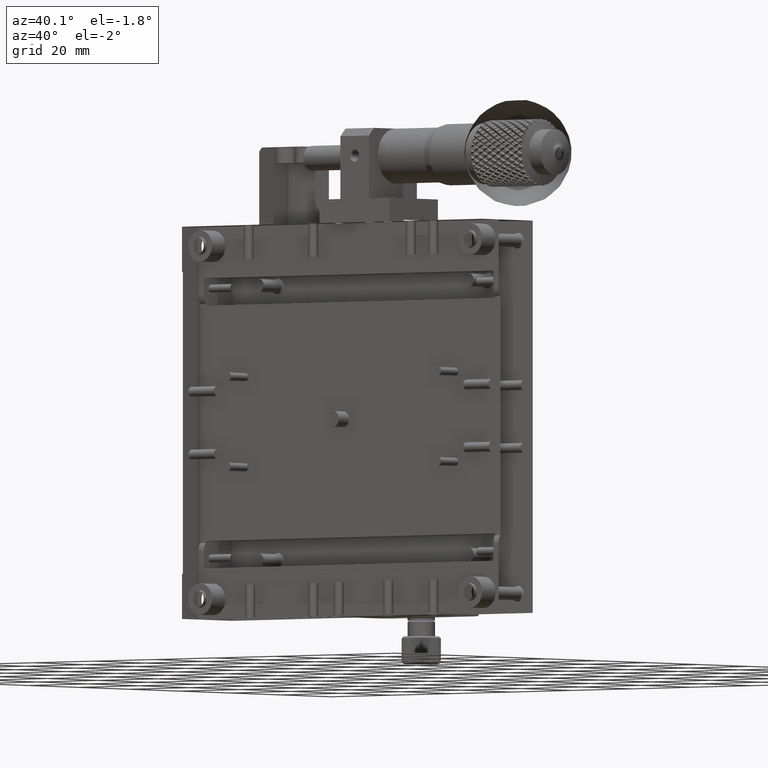
[diagram: clean part render]
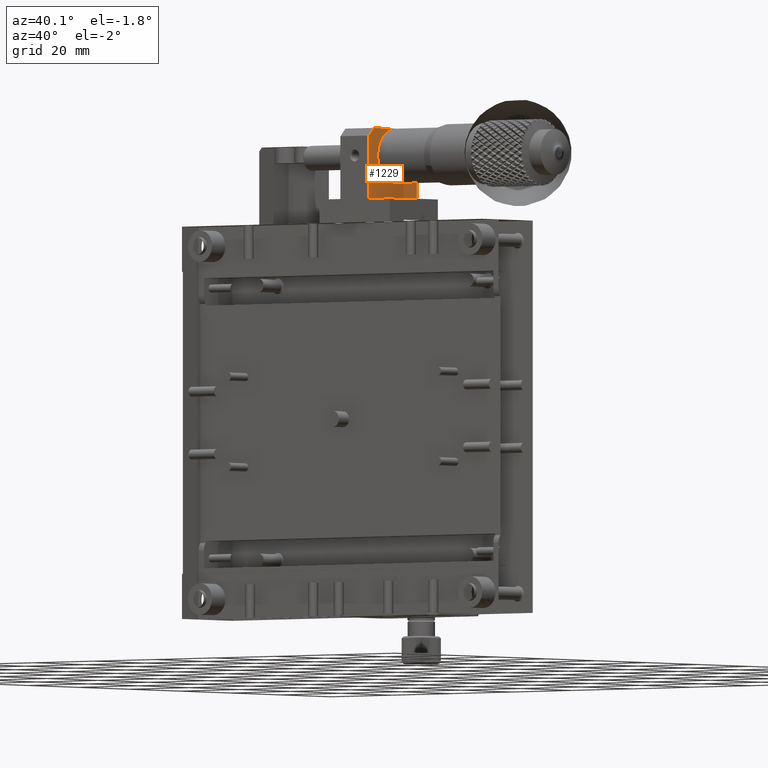
[diagram: same view with one face highlighted and labeled with its STEP entity id]
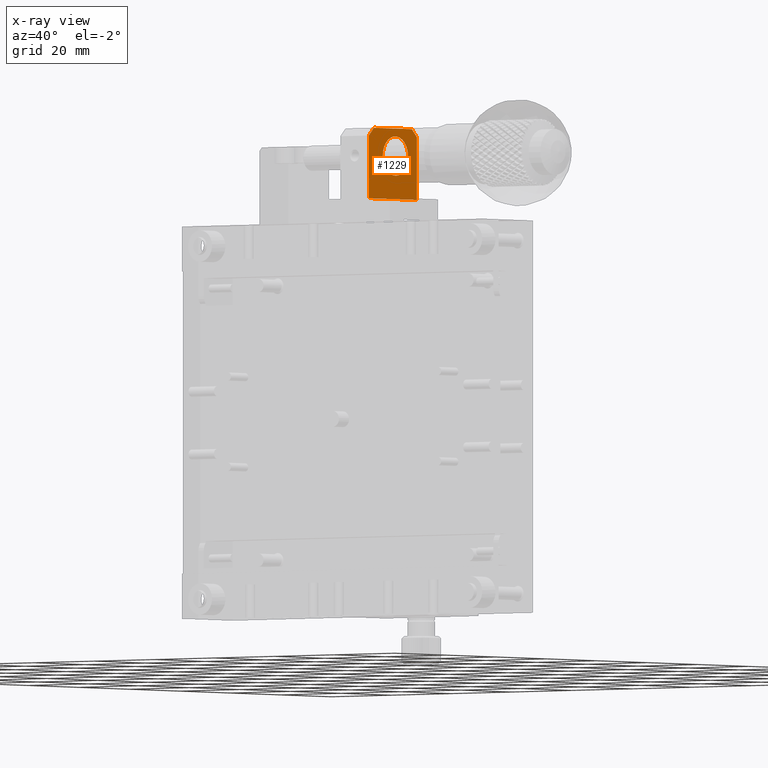
[diagram: x-ray of the same camera — body ghosted, the highlighted face saturated]
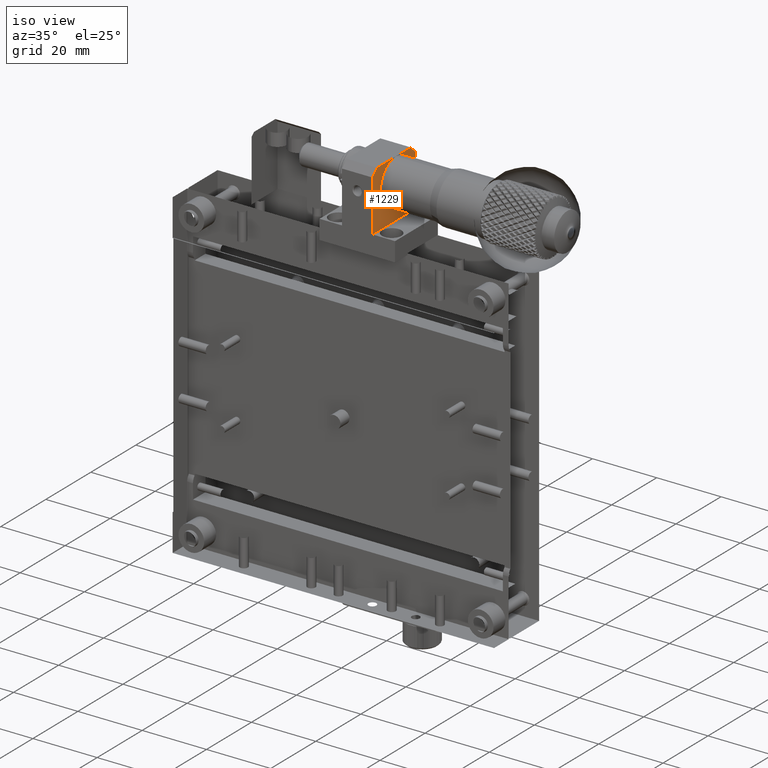
[diagram: same view with one face highlighted and labeled with its STEP entity id]
A machine part, auxiliary view. The second image highlights one B-rep face of the part: STEP entity #1229.
The next image is the same camera in x-ray: the body ghosted, the highlighted face saturated — about 0% of this face is hidden behind the body in this view.
A second angle (iso view) of the same face is appended — the face is thin or edge-on in the first view.
In plain terms, the highlighted planar face has unit normal (1, -0, 0).
Its self-contained STEP definition (entity closure, byte-faithful):
#509 = CARTESIAN_POINT ( 'NONE',  ( 25.80109935357900142, 4.509050023397064066, 56.00001249999999686 ) ) ;
#1229 = ADVANCED_FACE ( 'NONE', ( #62478, #46790 ), #68900, .T. ) ;
#1922 = CARTESIAN_POINT ( 'NONE',  ( 25.80109935357900852, -0.5773155411042533158, 63.34255286475351454 ) ) ;
#2815 = DIRECTION ( 'NONE',  ( 7.583683210611628379E-17, 0.000000000000000000, -1.000000000000000000 ) ) ;
#2988 = VECTOR ( 'NONE', #88964, 1000.000000000000000 ) ;
#4219 = CARTESIAN_POINT ( 'NONE',  ( 25.80109935357899431, -14.49094997660293416, 72.00001250000001107 ) ) ;
#4318 = CARTESIAN_POINT ( 'NONE',  ( 25.80109935357900142, -5.309037859090188327, 62.17184065414365080 ) ) ;
#4410 = VECTOR ( 'NONE', #25728, 1000.000000000000000 ) ;
#4798 = CARTESIAN_POINT ( 'NONE',  ( 25.80109935357900142, -8.268306355688359588, 64.40523072326317333 ) ) ;
#5283 = CARTESIAN_POINT ( 'NONE',  ( 25.80109935357900852, -5.811805308121201996, 62.34330666502793150 ) ) ;
#5762 = CARTESIAN_POINT ( 'NONE',  ( 25.80109935357900497, -8.395585966584853566, 64.62312786829446054 ) ) ;
#6251 = CARTESIAN_POINT ( 'NONE',  ( 25.80109935357900497, -5.757376340415842009, 62.32237940801928744 ) ) ;
#6746 = CARTESIAN_POINT ( 'NONE',  ( 25.80109935357900142, -1.542861891218868520, 71.36056215126301083 ) ) ;
#7373 = LINE ( 'NONE', #66596, #59063 ) ;
#7704 = CARTESIAN_POINT ( 'NONE',  ( 25.80109935357900142, 0.7176316793226528157, 68.68988353900434163 ) ) ;
#8715 = EDGE_LOOP ( 'NONE', ( #63720, #27710, #43493, #87789, #94350, #21718 ) ) ;
#9261 = LINE ( 'NONE', #509, #90038 ) ;
#10746 = DIRECTION ( 'NONE',  ( -0.000000000000000000, 5.112575245972829219E-17, 1.000000000000000000 ) ) ;
#11654 = CARTESIAN_POINT ( 'NONE',  ( 25.80109935357899786, -0.2116171298020833869, 63.70833005269478377 ) ) ;
#11729 = CARTESIAN_POINT ( 'NONE',  ( 25.80109935357900142, -8.990949976602935934, 67.00001249999999686 ) ) ;
#12622 = CARTESIAN_POINT ( 'NONE',  ( 25.80109935357900852, -8.849174500725679238, 65.81283953074202486 ) ) ;
#13116 = CARTESIAN_POINT ( 'NONE',  ( 25.80109935357900852, -7.404584412109193714, 70.65747213524377912 ) ) ;
#13518 = EDGE_CURVE ( 'NONE', #91297, #55964, #69747, .T. ) ;
#13609 = CARTESIAN_POINT ( 'NONE',  ( 25.80109935357899786, -6.585731753354262530, 71.27736887907428809 ) ) ;
#14083 = CARTESIAN_POINT ( 'NONE',  ( 25.80109935357900142, -7.978263357283520207, 63.98186511422258604 ) ) ;
#14097 = CARTESIAN_POINT ( 'NONE',  ( 25.80109935357900142, -2.672862094108394704, 71.82818434585911405 ) ) ;
#14578 = CARTESIAN_POINT ( 'NONE',  ( 25.80109935357900142, 0.7958099593790690651, 68.46059937168200804 ) ) ;
#15018 = EDGE_CURVE ( 'NONE', #82716, #91297, #36627, .T. ) ;
#15058 = CARTESIAN_POINT ( 'NONE',  ( 25.80109935357901207, -0.6992675292681054255, 70.77934534675685541 ) ) ;
#16014 = CARTESIAN_POINT ( 'NONE',  ( 25.80109935357900142, 4.509050023397064066, 56.00001249999999686 ) ) ;
#18029 = CARTESIAN_POINT ( 'NONE',  ( 25.80109935357899431, 0.6725046891341373012, 65.19651988056965308 ) ) ;
#18750 = CARTESIAN_POINT ( 'NONE',  ( 25.80109935357899431, -12.49094997660293593, 74.00001249999999686 ) ) ;
#19006 = CARTESIAN_POINT ( 'NONE',  ( 25.80109935357899786, 0.6657558583696888688, 65.17915716848267493 ) ) ;
#20443 = CARTESIAN_POINT ( 'NONE',  ( 25.80109935357899431, -8.575263858586007260, 65.00353017345489093 ) ) ;
#20461 = CARTESIAN_POINT ( 'NONE',  ( 25.80109935357899786, -6.797632238615835654, 71.13880064460271058 ) ) ;
#20944 = CARTESIAN_POINT ( 'NONE',  ( 25.80109935357900142, 1.009050023397066509, 67.00001249999999686 ) ) ;
#21411 = CARTESIAN_POINT ( 'NONE',  ( 25.80109935357899431, 0.9102117833111328382, 67.98946015923532116 ) ) ;
#21718 = ORIENTED_EDGE ( 'NONE', *, *, #68596, .F. ) ;
#21892 = CARTESIAN_POINT ( 'NONE',  ( 25.80109935357899431, -5.240601782589346946, 71.88292552377909317 ) ) ;
#22379 = CARTESIAN_POINT ( 'NONE',  ( 25.80109935357900142, -6.103127117899057374, 71.53338627806094507 ) ) ;
#24881 = CARTESIAN_POINT ( 'NONE',  ( 25.80109935357899786, -3.355486802448401029, 62.00007990400856528 ) ) ;
#25074 = EDGE_CURVE ( 'NONE', #34329, #96734, #91938, .T. ) ;
#25208 = VECTOR ( 'NONE', #10746, 1000.000000000000000 ) ;
#25395 = CARTESIAN_POINT ( 'NONE',  ( 25.80109935357900497, -8.351499627860963670, 69.44810058539700037 ) ) ;
#25728 = DIRECTION ( 'NONE',  ( 0.000000000000000000, -0.7071067811865439090, 0.7071067811865512365 ) ) ;
#26223 = CARTESIAN_POINT ( 'NONE',  ( 25.80109935357900142, 4.509050023397064066, 72.00001249999998265 ) ) ;
#26354 = CARTESIAN_POINT ( 'NONE',  ( 25.80109935357900142, -2.013750119168898234, 62.40720860070570808 ) ) ;
#26371 = CARTESIAN_POINT ( 'NONE',  ( 25.80109935357900142, -8.990949976602935934, 67.00001249999999686 ) ) ;
#26824 = CARTESIAN_POINT ( 'NONE',  ( 25.80109935357900497, -5.571432285039209731, 62.25505263444960491 ) ) ;
#26843 = CARTESIAN_POINT ( 'NONE',  ( 25.80109935357899786, -8.647655811576072438, 68.82086783151625298 ) ) ;
#27319 = CARTESIAN_POINT ( 'NONE',  ( 25.80109935357900852, -8.577776844627193142, 68.99743177815427941 ) ) ;
#27710 = ORIENTED_EDGE ( 'NONE', *, *, #13518, .T. ) ;
#27787 = CARTESIAN_POINT ( 'NONE',  ( 25.80109935357900852, -6.218025454877249558, 62.51776710357908939 ) ) ;
#28293 = CARTESIAN_POINT ( 'NONE',  ( 25.80109935357899786, -2.187467835256617477, 71.66347131266363135 ) ) ;
#28772 = CARTESIAN_POINT ( 'NONE',  ( 25.80109935357899786, -5.909740239815397089, 71.61722814278790850 ) ) ;
#29255 = CARTESIAN_POINT ( 'NONE',  ( 25.80109935357900497, 0.9812256374246903778, 67.60928649679392777 ) ) ;
#29728 = CARTESIAN_POINT ( 'NONE',  ( 25.80109935357901563, 0.6263832560163357099, 68.91886522841652152 ) ) ;
#31735 = CARTESIAN_POINT ( 'NONE',  ( 25.80109935357900497, -2.111224373283350886, 62.36675754120589232 ) ) ;
#32682 = CARTESIAN_POINT ( 'NONE',  ( 25.80109935357900142, 0.7075876832321752463, 65.28919924660625895 ) ) ;
#33170 = CARTESIAN_POINT ( 'NONE',  ( 25.80109935357900497, -0.9728025908325992344, 63.01269911931562007 ) ) ;
#33186 = CARTESIAN_POINT ( 'NONE',  ( 25.80109935357900142, -8.266565959200187663, 69.59352152500363786 ) ) ;
#33508 = B_SPLINE_CURVE_WITH_KNOTS ( 'NONE', 3,
 ( #40500, #56137, #70860, #85011, #48775, #32682, #69405, #18029, #19006, #84059, #76725, #78659, #47790, #41468, #70367, #11654, #1922, #92848, #33170, #91874, #33655, #93331, #63008, #85495, #26354, #85996, #31735, #69881, #61568, #24881, #54686, #73272, #4318, #26824, #35100, #6251, #86480, #5283, #50720, #27787, #34630, #58077, #94306, #64463, #93821, #64944, #36079, #14083, #35584, #79614, #4798, #5762, #81069, #20443, #56633, #51196, #94773, #42918, #12622, #57601, #87442, #65943, #72780, #50238, #57107, #88412 ),
 .UNSPECIFIED., .F., .F.,
 ( 4, 1, 1, 1, 1, 2, 2, 1, 2, 2, 2, 1, 2, 2, 1, 1, 1, 2, 2, 2, 1, 1, 1, 1, 2, 2, 1, 2, 2, 2, 1, 2, 2, 1, 1, 2, 2, 1, 1, 1, 2, 2, 4 ),
 ( 0.000000000000000000, 0.06250000000001612599, 0.09375000000002418898, 0.1093750000000268813, 0.1171875000000282413, 0.1210937500000289074, 0.1250000000000295874, 0.1562500000000301981, 0.1718750000000305311, 0.1875000000000308364, 0.2500000000000299205, 0.2812500000000285882, 0.2968750000000279221, 0.3125000000000272560, 0.3437500000000259792, 0.3593750000000253131, 0.3671875000000250355, 0.3710937500000248690, 0.3750000000000247025, 0.5000000000000153211, 0.5625000000000105471, 0.5937500000000081046, 0.6093750000000071054, 0.6171875000000064393, 0.6210937500000061062, 0.6250000000000057732, 0.6562500000000051070, 0.6718750000000047740, 0.6875000000000045519, 0.7500000000000005551, 0.7812499999999976685, 0.7968749999999970024, 0.8124999999999963363, 0.8437499999999951150, 0.8593749999999943379, 0.8671874999999951150, 0.8749999999999958922, 0.9062500000000041078, 0.9218750000000081046, 0.9296875000000088818, 0.9335937500000105471, 0.9375000000000122125, 1.000000000000000000 ),
 .UNSPECIFIED. ) ;
#33655 = CARTESIAN_POINT ( 'NONE',  ( 25.80109935357899786, -1.184267714589904319, 62.86122435539845554 ) ) ;
#34163 = CARTESIAN_POINT ( 'NONE',  ( 25.80109935357900142, -8.947067664766954920, 67.78625099251647157 ) ) ;
#34329 = VERTEX_POINT ( 'NONE', #83297 ) ;
#34630 = CARTESIAN_POINT ( 'NONE',  ( 25.80109935357900142, -6.439038061977805150, 62.63946284873024695 ) ) ;
#34647 = CARTESIAN_POINT ( 'NONE',  ( 25.80109935357899786, -8.654404642340008280, 68.80350511943075276 ) ) ;
#35100 = CARTESIAN_POINT ( 'NONE',  ( 25.80109935357899431, -5.701728303047747026, 62.30146101707717321 ) ) ;
#35168 = CARTESIAN_POINT ( 'NONE',  ( 25.80109935357900142, 4.509050023397064066, 56.00001249999999686 ) ) ;
#35584 = CARTESIAN_POINT ( 'NONE',  ( 25.80109935357900497, -8.079661405168154786, 64.12078666375990110 ) ) ;
#35595 = CARTESIAN_POINT ( 'NONE',  ( 25.80109935357900497, -7.770282823388633631, 70.29169494731067402 ) ) ;
#36079 = CARTESIAN_POINT ( 'NONE',  ( 25.80109935357900142, -7.821034365099982288, 63.77773830969375979 ) ) ;
#36567 = CARTESIAN_POINT ( 'NONE',  ( 25.80109935357900142, 0.8672745475166829809, 68.18718546927163970 ) ) ;
#36627 = LINE ( 'NONE', #35168, #2988 ) ;
#37045 = CARTESIAN_POINT ( 'NONE',  ( 25.80109935357900497, 0.4136860133684232554, 69.37689713172433414 ) ) ;
#37531 = CARTESIAN_POINT ( 'NONE',  ( 25.80109935357899786, 0.9220988172333914878, 67.92861159113989800 ) ) ;
#39078 = DIRECTION ( 'NONE',  ( -1.654707839399723058E-32, -1.000000000000000000, 5.112575245972829835E-17 ) ) ;
#40500 = CARTESIAN_POINT ( 'NONE',  ( 25.80109935357900142, 1.009050023397066509, 67.00001249999999686 ) ) ;
#41468 = CARTESIAN_POINT ( 'NONE',  ( 25.80109935357899786, 0.2411922263439050251, 64.33612213810481251 ) ) ;
#41965 = CARTESIAN_POINT ( 'NONE',  ( 25.80109935357900852, -8.819077588578677407, 68.31821214872853432 ) ) ;
#42460 = CARTESIAN_POINT ( 'NONE',  ( 25.80109935357900497, -8.689487636438048668, 68.71082575339524112 ) ) ;
#42918 = CARTESIAN_POINT ( 'NONE',  ( 25.80109935357900142, -8.777709912589106267, 65.53942562833616137 ) ) ;
#42932 = CARTESIAN_POINT ( 'NONE',  ( 25.80109935357900497, -3.673218389520113369, 72.00004620200638783 ) ) ;
#43493 = ORIENTED_EDGE ( 'NONE', *, *, #91823, .T. ) ;
#43894 = CARTESIAN_POINT ( 'NONE',  ( 25.80109935357900142, -1.327059614695716983, 71.23215470293844476 ) ) ;
#44371 = CARTESIAN_POINT ( 'NONE',  ( 25.80109935357900497, -2.410467668162409982, 71.74497236555201596 ) ) ;
#44995 = DIRECTION ( 'NONE',  ( -2.775557561562891967E-17, -1.000000000000000000, -2.104894927971065369E-33 ) ) ;
#46790 = FACE_BOUND ( 'NONE', #56335, .T. ) ;
#47790 = CARTESIAN_POINT ( 'NONE',  ( 25.80109935357900142, 0.2846660059979241320, 64.40650347500377393 ) ) ;
#47912 = AXIS2_PLACEMENT_3D ( 'NONE', #76692, #69844, #2815 ) ;
#48391 = VERTEX_POINT ( 'NONE', #11729 ) ;
#48775 = CARTESIAN_POINT ( 'NONE',  ( 25.80109935357899786, 0.7539840858504264220, 65.41946499459236009 ) ) ;
#50238 = CARTESIAN_POINT ( 'NONE',  ( 25.80109935357900497, -8.963125590630561135, 66.39073850321079817 ) ) ;
#50254 = CARTESIAN_POINT ( 'NONE',  ( 25.80109935357900497, -0.1608655881269629995, 70.22228669033582094 ) ) ;
#50720 = CARTESIAN_POINT ( 'NONE',  ( 25.80109935357900497, -5.988369254741105152, 62.41318563196720959 ) ) ;
#51196 = CARTESIAN_POINT ( 'NONE',  ( 25.80109935357899431, -8.624981444261131003, 65.12188832498677016 ) ) ;
#51211 = CARTESIAN_POINT ( 'NONE',  ( 25.80109935357899786, -5.968149834037161483, 71.59281639929248797 ) ) ;
#51695 = CARTESIAN_POINT ( 'NONE',  ( 25.80109935357900852, -6.870175812845173979, 71.08872392856522993 ) ) ;
#52177 = CARTESIAN_POINT ( 'NONE',  ( 25.80109935357900497, -1.993530698458081174, 71.58683936802789560 ) ) ;
#52787 = VECTOR ( 'NONE', #90965, 1000.000000000000114 ) ;
#54686 = CARTESIAN_POINT ( 'NONE',  ( 25.80109935357899786, -4.308681563680204718, 61.99997879799571621 ) ) ;
#55703 = CARTESIAN_POINT ( 'NONE',  ( 25.80109935357900142, -14.49094997660293771, 50.00001249999999686 ) ) ;
#55964 = VERTEX_POINT ( 'NONE', #73587 ) ;
#56137 = CARTESIAN_POINT ( 'NONE',  ( 25.80109935357900497, 1.009050023397066731, 66.68219575769487051 ) ) ;
#56335 = EDGE_LOOP ( 'NONE', ( #95616, #85445 ) ) ;
#56633 = CARTESIAN_POINT ( 'NONE',  ( 25.80109935357900852, -8.608283209225030319, 65.08115977158850285 ) ) ;
#57107 = CARTESIAN_POINT ( 'NONE',  ( 25.80109935357900497, -8.990949976602935934, 66.69401025723104226 ) ) ;
#57601 = CARTESIAN_POINT ( 'NONE',  ( 25.80109935357900142, -8.879970943477799139, 65.95102540874169961 ) ) ;
#58077 = CARTESIAN_POINT ( 'NONE',  ( 25.80109935357900497, -6.584459001592492200, 62.72439651739531996 ) ) ;
#58093 = CARTESIAN_POINT ( 'NONE',  ( 25.80109935357900497, -0.9662675896032371092, 70.99633146871266831 ) ) ;
#58578 = CARTESIAN_POINT ( 'NONE',  ( 25.80109935357899431, -2.170094645085506091, 71.65671833497269461 ) ) ;
#59063 = VECTOR ( 'NONE', #44995, 1000.000000000000000 ) ;
#59066 = CARTESIAN_POINT ( 'NONE',  ( 25.80109935357900497, -1.397440951607526127, 71.27562848260042472 ) ) ;
#59555 = CARTESIAN_POINT ( 'NONE',  ( 25.80109935357900142, -8.223092179547309755, 69.66390286190005554 ) ) ;
#61116 = LINE ( 'NONE', #4219, #52787 ) ;
#61568 = CARTESIAN_POINT ( 'NONE',  ( 25.80109935357899431, -2.741298170648611698, 62.11709947621674388 ) ) ;
#61686 = CARTESIAN_POINT ( 'NONE',  ( 25.80109935357900142, -14.49094997660294126, 72.00001249999999686 ) ) ;
#62478 = FACE_OUTER_BOUND ( 'NONE', #8715, .T. ) ;
#63008 = CARTESIAN_POINT ( 'NONE',  ( 25.80109935357900142, -1.614065344872379848, 62.59537651003342518 ) ) ;
#63720 = ORIENTED_EDGE ( 'NONE', *, *, #15018, .T. ) ;
#64463 = CARTESIAN_POINT ( 'NONE',  ( 25.80109935357900142, -7.015632363633901747, 63.00369353130889749 ) ) ;
#64944 = CARTESIAN_POINT ( 'NONE',  ( 25.80109935357900497, -7.648409611846668454, 63.58637806449618779 ) ) ;
#65461 = CARTESIAN_POINT ( 'NONE',  ( 25.80109935357900497, 0.2864064024764595984, 69.59479427674752117 ) ) ;
#65943 = CARTESIAN_POINT ( 'NONE',  ( 25.80109935357900852, -8.899970558006101484, 66.05032822054022290 ) ) ;
#66440 = CARTESIAN_POINT ( 'NONE',  ( 25.80109935357900852, -1.763874498316919448, 71.48225789641230676 ) ) ;
#66596 = CARTESIAN_POINT ( 'NONE',  ( 25.80109935357900142, 4.509050023397064066, 74.00001249999999686 ) ) ;
#66924 = CARTESIAN_POINT ( 'NONE',  ( 25.80109935357899431, -0.003636595938905412464, 70.01815988580065664 ) ) ;
#68596 = EDGE_CURVE ( 'NONE', #82716, #34329, #9261, .T. ) ;
#68900 = PLANE ( 'NONE',  #47912 ) ;
#69405 = CARTESIAN_POINT ( 'NONE',  ( 25.80109935357900497, 0.6866750189978400032, 65.23356567897415914 ) ) ;
#69747 = LINE ( 'NONE', #26223, #4410 ) ;
#69844 = DIRECTION ( 'NONE',  ( 1.000000000000000000, -2.775557561562891967E-17, 7.583683210611628379E-17 ) ) ;
#69881 = CARTESIAN_POINT ( 'NONE',  ( 25.80109935357900142, -2.132013249360598106, 62.35838260464007021 ) ) ;
#70367 = CARTESIAN_POINT ( 'NONE',  ( 25.80109935357900497, 0.005368992075995006677, 63.97533011295211480 ) ) ;
#70381 = CARTESIAN_POINT ( 'NONE',  ( 25.80109935357900142, -8.668574972203710871, 68.76645932102670145 ) ) ;
#70860 = CARTESIAN_POINT ( 'NONE',  ( 25.80109935357900142, 0.9651677115610853841, 66.21377400748984599 ) ) ;
#72324 = CARTESIAN_POINT ( 'NONE',  ( 25.80109935357899786, -8.473195373008907794, 69.22708797830249239 ) ) ;
#72780 = CARTESIAN_POINT ( 'NONE',  ( 25.80109935357900142, -8.903998770439260468, 66.07141340885979730 ) ) ;
#72794 = CARTESIAN_POINT ( 'NONE',  ( 25.80109935357900497, -2.280171650155843555, 71.69856398292365895 ) ) ;
#73272 = CARTESIAN_POINT ( 'NONE',  ( 25.80109935357899786, -4.777039447464328958, 62.04383583332848673 ) ) ;
#73288 = CARTESIAN_POINT ( 'NONE',  ( 25.80109935357900852, 0.5933639053750477954, 68.99649482655416932 ) ) ;
#73587 = CARTESIAN_POINT ( 'NONE',  ( 25.80109935357899431, 2.509050023397069396, 74.00001249999999686 ) ) ;
#73775 = CARTESIAN_POINT ( 'NONE',  ( 25.80109935357899786, -3.204860505731823572, 71.95618916667517340 ) ) ;
#74168 = VERTEX_POINT ( 'NONE', #18750 ) ;
#74244 = CARTESIAN_POINT ( 'NONE',  ( 25.80109935357900142, 1.009050023397066509, 67.30601474277366947 ) ) ;
#74440 = CARTESIAN_POINT ( 'NONE',  ( 25.80109935357900142, 1.009050023397066509, 67.00001249999999686 ) ) ;
#74720 = CARTESIAN_POINT ( 'NONE',  ( 25.80109935357900852, -0.3334903413712402287, 70.41364693552073106 ) ) ;
#75536 = EDGE_CURVE ( 'NONE', #48391, #88861, #94298, .T. ) ;
#76692 = CARTESIAN_POINT ( 'NONE',  ( 25.80109935357900142, 4.509050023397064066, 56.00001249999999686 ) ) ;
#76725 = CARTESIAN_POINT ( 'NONE',  ( 25.80109935357900497, 0.4912954198102465475, 64.77293702171239431 ) ) ;
#77813 = CARTESIAN_POINT ( 'NONE',  ( 25.80109935357900142, 4.509050023397065843, 72.00001249999998265 ) ) ;
#78659 = CARTESIAN_POINT ( 'NONE',  ( 25.80109935357899786, 0.3695996746607590477, 64.55192441461467467 ) ) ;
#79614 = CARTESIAN_POINT ( 'NONE',  ( 25.80109935357900142, -8.129738121200109191, 64.19333023797983628 ) ) ;
#79632 = CARTESIAN_POINT ( 'NONE',  ( 25.80109935357901207, -8.990949976602939486, 67.31782924230873277 ) ) ;
#80597 = CARTESIAN_POINT ( 'NONE',  ( 25.80109935357900852, -5.849886703844267899, 71.64164239536009404 ) ) ;
#81069 = CARTESIAN_POINT ( 'NONE',  ( 25.80109935357900852, -8.524323754678501786, 64.88783535872295261 ) ) ;
#81084 = CARTESIAN_POINT ( 'NONE',  ( 25.80109935357900497, 0.09776145195174686109, 69.87923833625488612 ) ) ;
#81572 = CARTESIAN_POINT ( 'NONE',  ( 25.80109935357900142, 0.6430814910558593223, 68.87813667501063719 ) ) ;
#81871 = EDGE_CURVE ( 'NONE', #74168, #96734, #61116, .T. ) ;
#82060 = CARTESIAN_POINT ( 'NONE',  ( 25.80109935357899431, -4.626413150768579285, 71.99994509598727177 ) ) ;
#82716 = VERTEX_POINT ( 'NONE', #16014 ) ;
#83297 = CARTESIAN_POINT ( 'NONE',  ( 25.80109935357900142, -14.49094997660293771, 56.00001250000000397 ) ) ;
#84059 = CARTESIAN_POINT ( 'NONE',  ( 25.80109935357900497, 0.5958768914254404248, 65.00259322185422661 ) ) ;
#85011 = CARTESIAN_POINT ( 'NONE',  ( 25.80109935357900497, 0.8371776353728082043, 65.68181285127619162 ) ) ;
#85445 = ORIENTED_EDGE ( 'NONE', *, *, #90396, .T. ) ;
#85495 = CARTESIAN_POINT ( 'NONE',  ( 25.80109935357899786, -1.878772835307145339, 62.46663872193592937 ) ) ;
#85996 = CARTESIAN_POINT ( 'NONE',  ( 25.80109935357900497, -2.072159713390588021, 62.38279685721101941 ) ) ;
#86480 = CARTESIAN_POINT ( 'NONE',  ( 25.80109935357900852, -5.794432117948570493, 62.33655368733659685 ) ) ;
#87442 = CARTESIAN_POINT ( 'NONE',  ( 25.80109935357900497, -8.892111736518099718, 66.01056484076944741 ) ) ;
#87458 = CARTESIAN_POINT ( 'NONE',  ( 25.80109935357899431, -6.367834608333930113, 71.40464848996242608 ) ) ;
#87789 = ORIENTED_EDGE ( 'NONE', *, *, #81871, .T. ) ;
#87946 = CARTESIAN_POINT ( 'NONE',  ( 25.80109935357900852, 0.9180706047996564090, 67.94969677946230036 ) ) ;
#88412 = CARTESIAN_POINT ( 'NONE',  ( 25.80109935357900142, -8.990949976602935934, 67.00001249999999686 ) ) ;
#88425 = CARTESIAN_POINT ( 'NONE',  ( 25.80109935357899786, 0.5424238014647122519, 69.11218964129110987 ) ) ;
#88861 = VERTEX_POINT ( 'NONE', #74440 ) ;
#88906 = CARTESIAN_POINT ( 'NONE',  ( 25.80109935357900497, -7.987268945291724265, 70.02469488702830347 ) ) ;
#88964 = DIRECTION ( 'NONE',  ( -7.583683210611628379E-17, -0.000000000000000000, 1.000000000000000000 ) ) ;
#89397 = CARTESIAN_POINT ( 'NONE',  ( 25.80109935357900142, -5.870675579922577825, 71.63326745879352586 ) ) ;
#90038 = VECTOR ( 'NONE', #39078, 1000.000000000000000 ) ;
#90396 = EDGE_CURVE ( 'NONE', #88861, #48391, #33508, .T. ) ;
#90965 = DIRECTION ( 'NONE',  ( -0.000000000000000000, -0.7071067811865495711, -0.7071067811865455743 ) ) ;
#91297 = VERTEX_POINT ( 'NONE', #77813 ) ;
#91823 = EDGE_CURVE ( 'NONE', #55964, #74168, #7373, .T. ) ;
#91874 = CARTESIAN_POINT ( 'NONE',  ( 25.80109935357900497, -1.111724140367328140, 62.91130107143233374 ) ) ;
#91938 = LINE ( 'NONE', #55703, #25208 ) ;
#92848 = CARTESIAN_POINT ( 'NONE',  ( 25.80109935357899431, -0.7686757863056742357, 63.16992811149811615 ) ) ;
#93331 = CARTESIAN_POINT ( 'NONE',  ( 25.80109935357901207, -1.396168199851859582, 62.72265612092333953 ) ) ;
#93821 = CARTESIAN_POINT ( 'NONE',  ( 25.80109935357899786, -7.282632423913686814, 63.22067965320943017 ) ) ;
#93836 = CARTESIAN_POINT ( 'NONE',  ( 25.80109935357899786, -8.735884039056296402, 68.58056000541037633 ) ) ;
#94298 = B_SPLINE_CURVE_WITH_KNOTS ( 'NONE', 3,
 ( #26371, #79632, #34163, #41965, #93836, #42460, #70381, #34647, #26843, #27319, #72324, #25395, #33186, #59555, #88906, #35595, #13116, #94790, #95298, #51695, #20461, #13609, #87458, #22379, #51211, #28772, #89397, #80597, #21892, #82060, #42932, #73775, #14097, #44371, #72794, #95779, #28293, #58578, #52177, #66440, #6746, #59066, #43894, #58093, #15058, #74720, #50254, #66924, #81084, #96243, #65461, #37045, #88425, #73288, #29728, #81572, #7704, #14578, #36567, #96741, #21411, #87946, #37531, #29255, #74244, #20944 ),
 .UNSPECIFIED., .F., .F.,
 ( 4, 1, 1, 1, 1, 2, 2, 1, 2, 2, 2, 1, 2, 2, 1, 1, 1, 2, 2, 2, 1, 1, 1, 1, 2, 2, 1, 2, 2, 2, 1, 2, 2, 1, 1, 2, 2, 1, 1, 1, 2, 2, 4 ),
 ( 0.000000000000000000, 0.06250000000000931200, 0.09375000000001400269, 0.1093750000000163897, 0.1171875000000176387, 0.1210937500000169170, 0.1250000000000161815, 0.1562500000000155986, 0.1718750000000153766, 0.1875000000000151268, 0.2500000000000077161, 0.2812500000000030531, 0.2968749999999999445, 0.3124999999999968359, 0.3437499999999906741, 0.3593749999999882316, 0.3671874999999870104, 0.3710937499999864553, 0.3749999999999859002, 0.4999999999999833467, 0.5624999999999821254, 0.5937499999999814593, 0.6093749999999811262, 0.6171874999999809042, 0.6210937499999809042, 0.6249999999999807931, 0.6562499999999830136, 0.6718749999999841238, 0.6874999999999852340, 0.7499999999999866773, 0.7812499999999883427, 0.7968749999999882316, 0.8124999999999881206, 0.8437499999999877875, 0.8593749999999876765, 0.8671874999999876765, 0.8749999999999875655, 0.9062499999999847899, 0.9218749999999834577, 0.9296874999999827915, 0.9335937499999836797, 0.9374999999999845679, 1.000000000000000000 ),
 .UNSPECIFIED. ) ;
#94306 = CARTESIAN_POINT ( 'NONE',  ( 25.80109935357900142, -6.654840338502334696, 62.76787029705620569 ) ) ;
#94350 = ORIENTED_EDGE ( 'NONE', *, *, #25074, .F. ) ;
#94773 = CARTESIAN_POINT ( 'NONE',  ( 25.80109935357900852, -8.699531632530906222, 65.31014146100605444 ) ) ;
#94790 = CARTESIAN_POINT ( 'NONE',  ( 25.80109935357900497, -7.213224166913460245, 70.83009688849716667 ) ) ;
#95298 = CARTESIAN_POINT ( 'NONE',  ( 25.80109935357900142, -7.009097362383691632, 70.98732588068068594 ) ) ;
#95616 = ORIENTED_EDGE ( 'NONE', *, *, #75536, .T. ) ;
#95779 = CARTESIAN_POINT ( 'NONE',  ( 25.80109935357900497, -2.224523612788696258, 71.67764559198126051 ) ) ;
#96243 = CARTESIAN_POINT ( 'NONE',  ( 25.80109935357899786, 0.1478381679972547991, 69.80669476201482837 ) ) ;
#96734 = VERTEX_POINT ( 'NONE', #61686 ) ;
#96741 = CARTESIAN_POINT ( 'NONE',  ( 25.80109935357899786, 0.8980709902701071723, 68.04899959126628062 ) ) ;